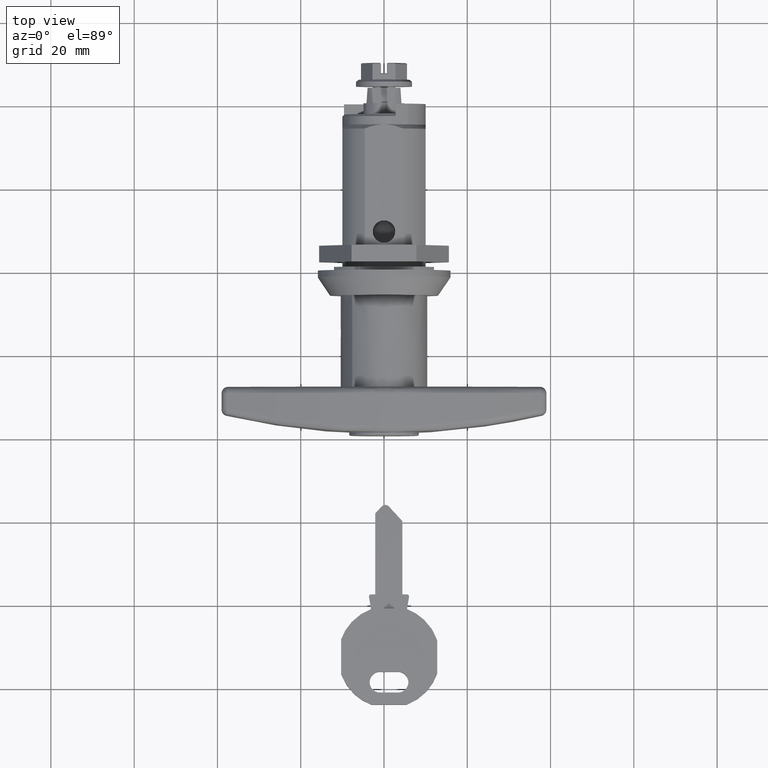
[diagram: clean part render]
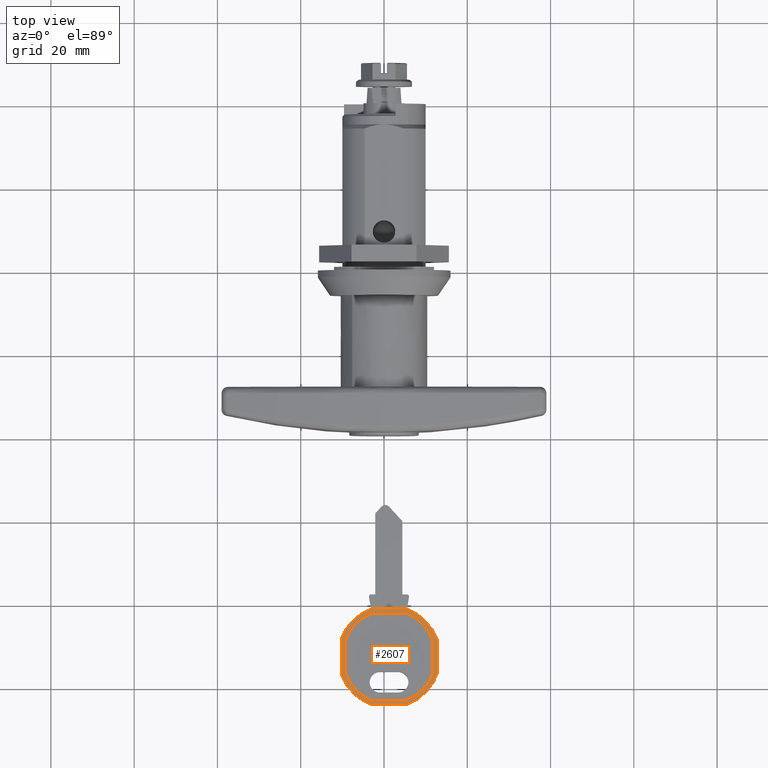
[diagram: same view with one face highlighted and labeled with its STEP entity id]
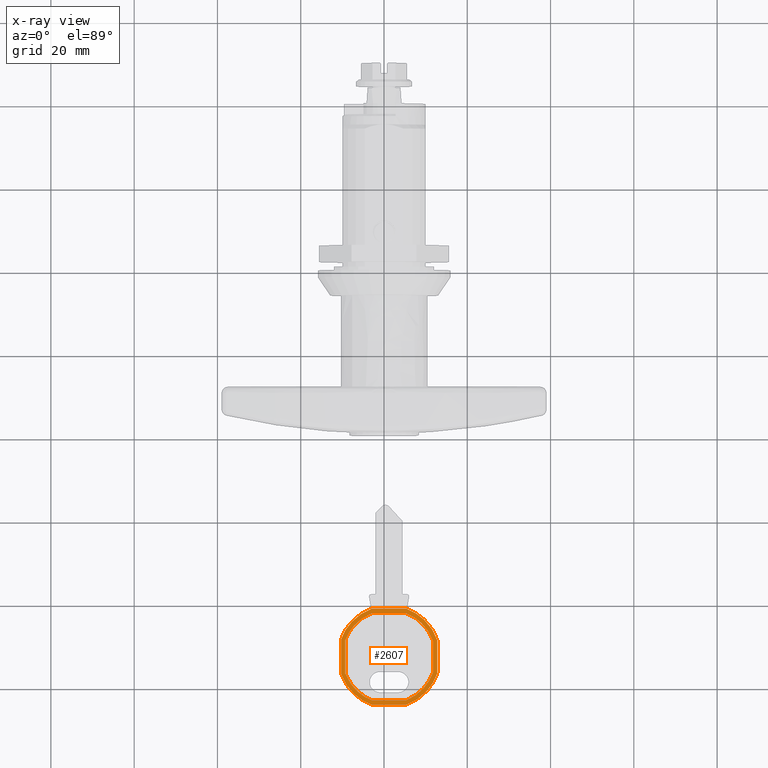
[diagram: x-ray of the same camera — body ghosted, the highlighted face saturated]
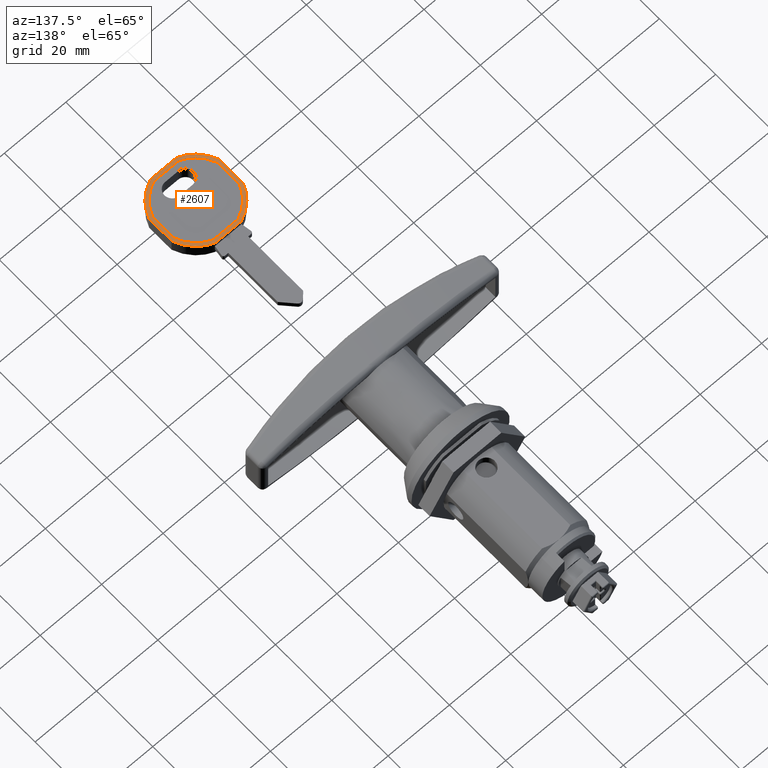
[diagram: same view with one face highlighted and labeled with its STEP entity id]
A machine part, top view. The second image highlights one B-rep face of the part: STEP entity #2607.
The next image is the same camera in x-ray: the body ghosted, the highlighted face saturated — about 0% of this face is hidden behind the body in this view.
A second angle (auxiliary view) of the same face is appended — the face is thin or edge-on in the first view.
In plain terms, the highlighted face is a freeform B-spline surface patch.
Its self-contained STEP definition (entity closure, byte-faithful):
#2157=CARTESIAN_POINT('',(-71.959688897296601,-5.242300839961731,2.500000000000000));
#2158=VERTEX_POINT('',#2157);
#2159=CARTESIAN_POINT('',(-71.959688897296601,2.835446594893880,2.499999999999945));
#2160=VERTEX_POINT('',#2159);
#2161=CARTESIAN_POINT('',(-71.959688897296601,-5.242300839961731,2.500000000000000));
#2162=CARTESIAN_POINT('',(-71.959688897296601,2.835446594893880,2.499999999999945));
#2163=QUASI_UNIFORM_CURVE('',1,(#2161,#2162),.UNSPECIFIED.,.F.,.U.);
#2164=EDGE_CURVE('',#2158,#2160,#2163,.T.);
#2194=CARTESIAN_POINT('',(-78.671845461274089,-11.796573529506100,2.499999999999945));
#2195=VERTEX_POINT('',#2194);
#2196=CARTESIAN_POINT('',(-78.671845461274074,-11.796573529506141,2.499999999999945));
#2197=CARTESIAN_POINT('',(-73.812444190347350,-10.058973262333362,2.499999999999945));
#2198=CARTESIAN_POINT('',(-71.959688897296417,-5.242300839961809,2.499999999999945));
#2206=(BOUNDED_CURVE()B_SPLINE_CURVE(2,(#2196,#2197,#2198),.UNSPECIFIED.,.F.,.U.)CURVE()GEOMETRIC_REPRESENTATION_ITEM()QUASI_UNIFORM_CURVE()RATIONAL_B_SPLINE_CURVE((1.0,0.908927978377632,1.0))REPRESENTATION_ITEM(''));
#2207=EDGE_CURVE('',#2195,#2158,#2206,.T.);
#2224=CARTESIAN_POINT('',(-86.247533493905209,-11.796573529506119,2.499999999999945));
#2225=VERTEX_POINT('',#2224);
#2226=CARTESIAN_POINT('',(-86.247533493905209,-11.796573529506119,2.499999999999945));
#2227=CARTESIAN_POINT('',(-78.671845461274089,-11.796573529506100,2.499999999999945));
#2228=QUASI_UNIFORM_CURVE('',1,(#2226,#2227),.UNSPECIFIED.,.F.,.U.);
#2229=EDGE_CURVE('',#2225,#2195,#2228,.T.);
#2255=CARTESIAN_POINT('',(-92.959690162447700,-5.242300568120299,2.499999999999945));
#2256=VERTEX_POINT('',#2255);
#2257=CARTESIAN_POINT('',(-92.959690162447714,-5.242300568120304,2.499999999999945));
#2258=CARTESIAN_POINT('',(-91.106934930814305,-10.058973202982020,2.499999999999945));
#2259=CARTESIAN_POINT('',(-86.247533493905195,-11.796573529506080,2.499999999999945));
#2267=(BOUNDED_CURVE()B_SPLINE_CURVE(2,(#2257,#2258,#2259),.UNSPECIFIED.,.F.,.U.)CURVE()GEOMETRIC_REPRESENTATION_ITEM()QUASI_UNIFORM_CURVE()RATIONAL_B_SPLINE_CURVE((1.0,0.908927972980248,1.0))REPRESENTATION_ITEM(''));
#2268=EDGE_CURVE('',#2256,#2225,#2267,.T.);
#2285=CARTESIAN_POINT('',(-92.959690162447799,2.835446323052455,2.499999999999945));
#2286=VERTEX_POINT('',#2285);
#2287=CARTESIAN_POINT('',(-92.959690162447799,2.835446323052455,2.499999999999945));
#2288=CARTESIAN_POINT('',(-92.959690162447700,-5.242300568120299,2.499999999999945));
#2289=QUASI_UNIFORM_CURVE('',1,(#2287,#2288),.UNSPECIFIED.,.F.,.U.);
#2290=EDGE_CURVE('',#2286,#2256,#2289,.T.);
#2316=CARTESIAN_POINT('',(-86.498563008494600,9.296573529505961,2.499999999999945));
#2317=VERTEX_POINT('',#2316);
#2318=CARTESIAN_POINT('',(-86.498563008494628,9.296573529506057,2.499999999999945));
#2319=CARTESIAN_POINT('',(-91.164800495240456,7.501683824382800,2.499999999999945));
#2320=CARTESIAN_POINT('',(-92.959690162447842,2.835446323052474,2.499999999999945));
#2328=(BOUNDED_CURVE()B_SPLINE_CURVE(2,(#2318,#2319,#2320),.UNSPECIFIED.,.F.,.U.)CURVE()GEOMETRIC_REPRESENTATION_ITEM()QUASI_UNIFORM_CURVE()RATIONAL_B_SPLINE_CURVE((1.0,0.913825420027830,1.0))REPRESENTATION_ITEM(''));
#2329=EDGE_CURVE('',#2317,#2286,#2328,.T.);
#2346=CARTESIAN_POINT('',(-78.420815946684499,9.296573529505961,2.499999999999945));
#2347=VERTEX_POINT('',#2346);
#2348=CARTESIAN_POINT('',(-78.420815946684499,9.296573529505961,2.499999999999945));
#2349=CARTESIAN_POINT('',(-86.498563008494600,9.296573529505961,2.499999999999945));
#2350=QUASI_UNIFORM_CURVE('',1,(#2348,#2349),.UNSPECIFIED.,.F.,.U.);
#2351=EDGE_CURVE('',#2347,#2317,#2350,.T.);
#2377=CARTESIAN_POINT('',(-71.959688897296530,2.835446594893903,2.499999999999945));
#2378=CARTESIAN_POINT('',(-73.754578622703150,7.501683886990721,2.499999999999945));
#2379=CARTESIAN_POINT('',(-78.420815946684471,9.296573529506009,2.499999999999945));
#2387=(BOUNDED_CURVE()B_SPLINE_CURVE(2,(#2377,#2378,#2379),.UNSPECIFIED.,.F.,.U.)CURVE()GEOMETRIC_REPRESENTATION_ITEM()QUASI_UNIFORM_CURVE()RATIONAL_B_SPLINE_CURVE((1.0,0.913825425284824,1.0))REPRESENTATION_ITEM(''));
#2388=EDGE_CURVE('',#2160,#2347,#2387,.T.);
#2502=CARTESIAN_POINT('',(-95.108544365479275,11.450076397126679,2.500000000000000));
#2503=CARTESIAN_POINT('',(-69.810836339353330,11.450076397126679,2.500000000000000));
#2504=CARTESIAN_POINT('',(-95.108544365479275,-13.950076810064370,2.500000000000000));
#2505=CARTESIAN_POINT('',(-69.810836339353330,-13.950076810064370,2.500000000000000));
#2506=B_SPLINE_SURFACE_WITH_KNOTS('',1,1,((#2502,#2504),(#2503,#2505)),.UNSPECIFIED.,.F.,.F.,.U.,(2,2),(2,2),(0.0,25.297708026125949),(0.0,25.400153207191050),.UNSPECIFIED.);
#2507=CARTESIAN_POINT('',(-70.959688897296601,3.017058739121070,2.499999999999945));
#2508=VERTEX_POINT('',#2507);
#2509=CARTESIAN_POINT('',(-78.239203811430713,10.296573529506080,2.499999999999945));
#2510=VERTEX_POINT('',#2509);
#2511=CARTESIAN_POINT('',(-70.959688897296502,3.017058739121098,2.499999999999945));
#2512=CARTESIAN_POINT('',(-72.914023437009760,8.342239080319056,2.499999999999945));
#2513=CARTESIAN_POINT('',(-78.239203811430727,10.296573529506061,2.499999999999945));
#2521=(BOUNDED_CURVE()B_SPLINE_CURVE(2,(#2511,#2512,#2513),.UNSPECIFIED.,.F.,.U.)CURVE()GEOMETRIC_REPRESENTATION_ITEM()QUASI_UNIFORM_CURVE()RATIONAL_B_SPLINE_CURVE((1.0,0.907433632238054,1.0))REPRESENTATION_ITEM(''));
#2522=EDGE_CURVE('',#2508,#2510,#2521,.T.);
#2523=ORIENTED_EDGE('',*,*,#2522,.T.);
#2524=CARTESIAN_POINT('',(-86.680175143748613,10.296573529506080,2.499999999999945));
#2525=VERTEX_POINT('',#2524);
#2526=CARTESIAN_POINT('',(-78.239203811430713,10.296573529506080,2.499999999999945));
#2527=CARTESIAN_POINT('',(-86.680175143748613,10.296573529506080,2.499999999999945));
#2528=QUASI_UNIFORM_CURVE('',1,(#2526,#2527),.UNSPECIFIED.,.F.,.U.);
#2529=EDGE_CURVE('',#2510,#2525,#2528,.T.);
#2530=ORIENTED_EDGE('',*,*,#2529,.T.);
#2531=CARTESIAN_POINT('',(-93.959690162447700,3.017058454202105,2.499999999999945));
#2532=VERTEX_POINT('',#2531);
#2533=CARTESIAN_POINT('',(-86.680175143748585,10.296573529506031,2.499999999999945));
#2534=CARTESIAN_POINT('',(-92.005355691175765,8.342239016825996,2.499999999999945));
#2535=CARTESIAN_POINT('',(-93.959690162447714,3.017058454202108,2.499999999999945));
#2543=(BOUNDED_CURVE()B_SPLINE_CURVE(2,(#2533,#2534,#2535),.UNSPECIFIED.,.F.,.U.)CURVE()GEOMETRIC_REPRESENTATION_ITEM()QUASI_UNIFORM_CURVE()RATIONAL_B_SPLINE_CURVE((1.0,0.907433627032764,1.0))REPRESENTATION_ITEM(''));
#2544=EDGE_CURVE('',#2525,#2532,#2543,.T.);
#2545=ORIENTED_EDGE('',*,*,#2544,.T.);
#2546=CARTESIAN_POINT('',(-93.959690162447700,-5.423912699269721,2.499999999999945));
#2547=VERTEX_POINT('',#2546);
#2548=CARTESIAN_POINT('',(-93.959690162447700,3.017058454202105,2.499999999999945));
#2549=CARTESIAN_POINT('',(-93.959690162447700,-5.423912699269721,2.499999999999945));
#2550=QUASI_UNIFORM_CURVE('',1,(#2548,#2549),.UNSPECIFIED.,.F.,.U.);
#2551=EDGE_CURVE('',#2532,#2547,#2550,.T.);
#2552=ORIENTED_EDGE('',*,*,#2551,.T.);
#2553=CARTESIAN_POINT('',(-86.417147075806000,-12.796573529506119,2.499999999999945));
#2554=VERTEX_POINT('',#2553);
#2555=CARTESIAN_POINT('',(-93.959690162447686,-5.423912699269708,2.499999999999945));
#2556=CARTESIAN_POINT('',(-91.946667831975091,-10.909006240798634,2.499999999999945));
#2557=CARTESIAN_POINT('',(-86.417147075805985,-12.796573529506110,2.499999999999945));
#2565=(BOUNDED_CURVE()B_SPLINE_CURVE(2,(#2555,#2556,#2557),.UNSPECIFIED.,.F.,.U.)CURVE()GEOMETRIC_REPRESENTATION_ITEM()QUASI_UNIFORM_CURVE()RATIONAL_B_SPLINE_CURVE((1.0,0.902589109046229,1.0))REPRESENTATION_ITEM(''));
#2566=EDGE_CURVE('',#2547,#2554,#2565,.T.);
#2567=ORIENTED_EDGE('',*,*,#2566,.T.);
#2568=CARTESIAN_POINT('',(-78.502231879373198,-12.796573529506020,2.499999999999945));
#2569=VERTEX_POINT('',#2568);
#2570=CARTESIAN_POINT('',(-86.417147075806000,-12.796573529506119,2.499999999999945));
#2571=CARTESIAN_POINT('',(-78.502231879373198,-12.796573529506020,2.499999999999945));
#2572=QUASI_UNIFORM_CURVE('',1,(#2570,#2571),.UNSPECIFIED.,.F.,.U.);
#2573=EDGE_CURVE('',#2554,#2569,#2572,.T.);
#2574=ORIENTED_EDGE('',*,*,#2573,.T.);
#2575=CARTESIAN_POINT('',(-70.959688897296601,-5.423912984189440,2.499999999999945));
#2576=VERTEX_POINT('',#2575);
#2577=CARTESIAN_POINT('',(-78.502231879373170,-12.796573529506119,2.499999999999945));
#2578=CARTESIAN_POINT('',(-72.972711299489148,-10.909006300975726,2.499999999999945));
#2579=CARTESIAN_POINT('',(-70.959688897296544,-5.423912984189460,2.499999999999945));
#2587=(BOUNDED_CURVE()B_SPLINE_CURVE(2,(#2577,#2578,#2579),.UNSPECIFIED.,.F.,.U.)CURVE()GEOMETRIC_REPRESENTATION_ITEM()QUASI_UNIFORM_CURVE()RATIONAL_B_SPLINE_CURVE((1.0,0.902589114379220,1.0))REPRESENTATION_ITEM(''));
#2588=EDGE_CURVE('',#2569,#2576,#2587,.T.);
#2589=ORIENTED_EDGE('',*,*,#2588,.T.);
#2590=CARTESIAN_POINT('',(-70.959688897296601,-5.423912984189440,2.499999999999945));
#2591=CARTESIAN_POINT('',(-70.959688897296601,3.017058739121070,2.499999999999945));
#2592=QUASI_UNIFORM_CURVE('',1,(#2590,#2591),.UNSPECIFIED.,.F.,.U.);
#2593=EDGE_CURVE('',#2576,#2508,#2592,.T.);
#2594=ORIENTED_EDGE('',*,*,#2593,.T.);
#2595=EDGE_LOOP('',(#2523,#2530,#2545,#2552,#2567,#2574,#2589,#2594));
#2596=FACE_OUTER_BOUND('',#2595,.T.);
#2597=ORIENTED_EDGE('',*,*,#2388,.F.);
#2598=ORIENTED_EDGE('',*,*,#2164,.F.);
#2599=ORIENTED_EDGE('',*,*,#2207,.F.);
#2600=ORIENTED_EDGE('',*,*,#2229,.F.);
#2601=ORIENTED_EDGE('',*,*,#2268,.F.);
#2602=ORIENTED_EDGE('',*,*,#2290,.F.);
#2603=ORIENTED_EDGE('',*,*,#2329,.F.);
#2604=ORIENTED_EDGE('',*,*,#2351,.F.);
#2605=EDGE_LOOP('',(#2597,#2598,#2599,#2600,#2601,#2602,#2603,#2604));
#2606=FACE_BOUND('',#2605,.T.);
#2607=ADVANCED_FACE('',(#2596,#2606),#2506,.F.);